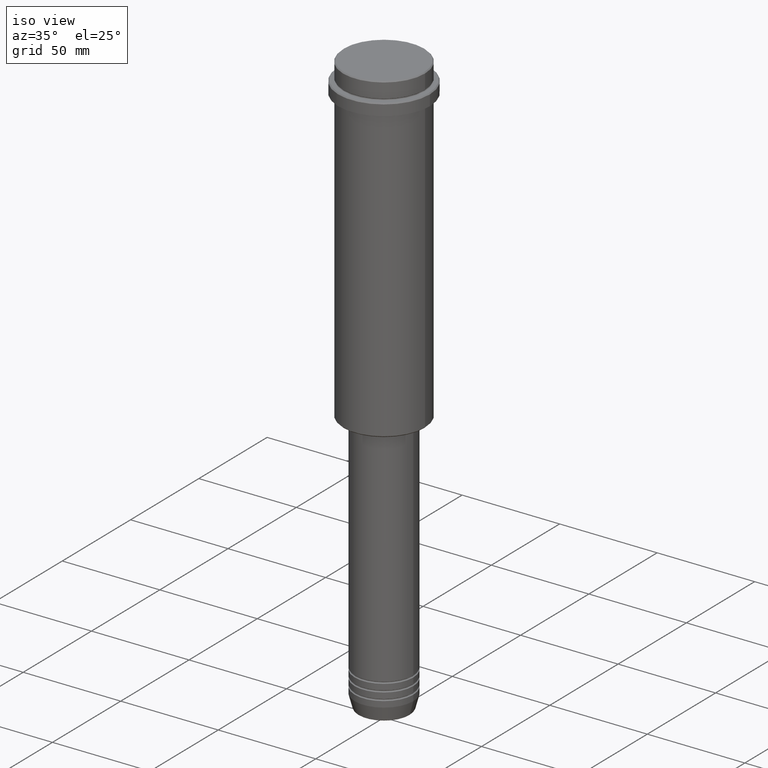
[diagram: clean part render]
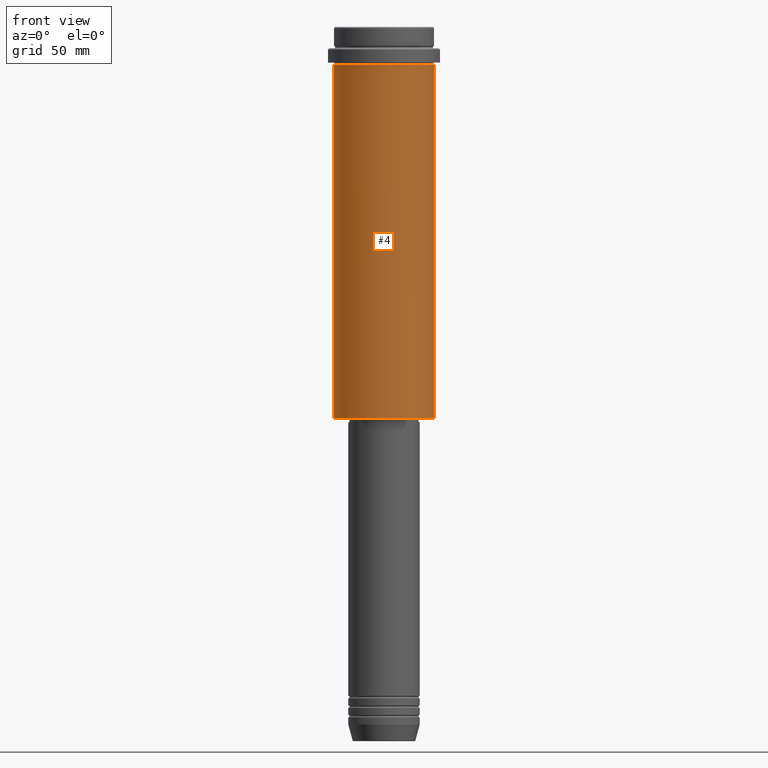
[diagram: tour spotlight — one face highlighted and labeled with its STEP entity id]
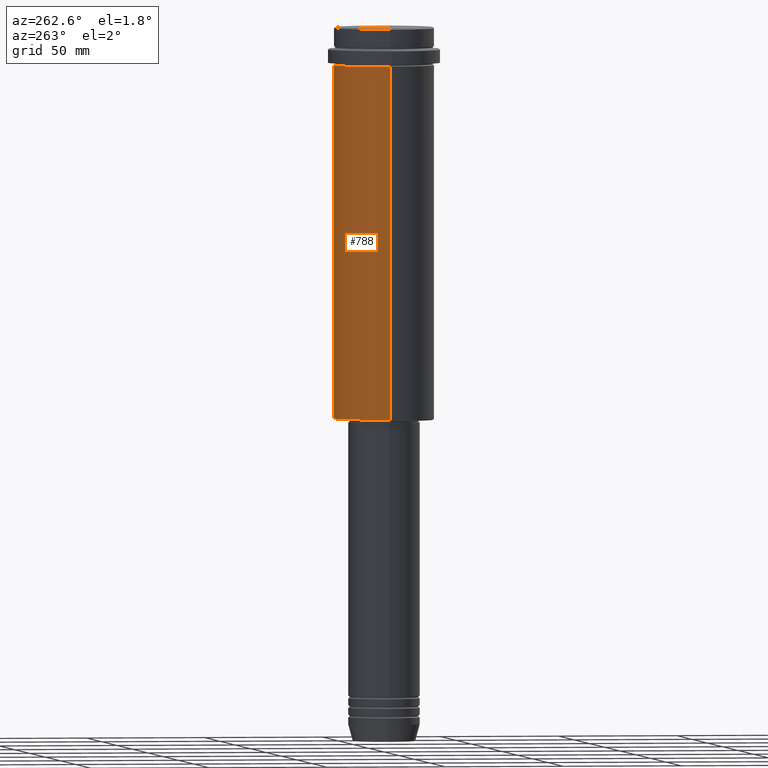
[diagram: tour spotlight — one face highlighted and labeled with its STEP entity id]
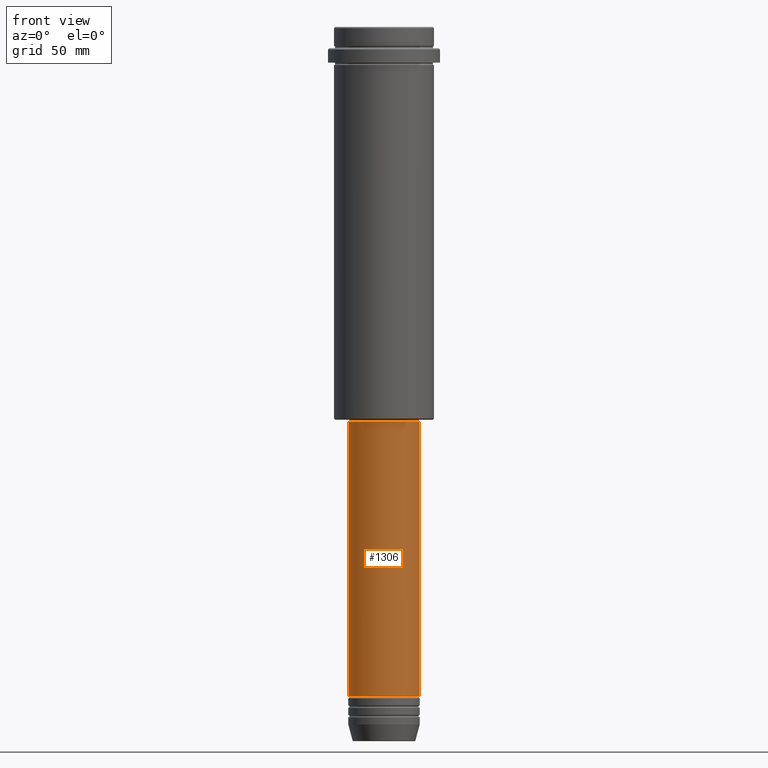
[diagram: tour spotlight — one face highlighted and labeled with its STEP entity id]
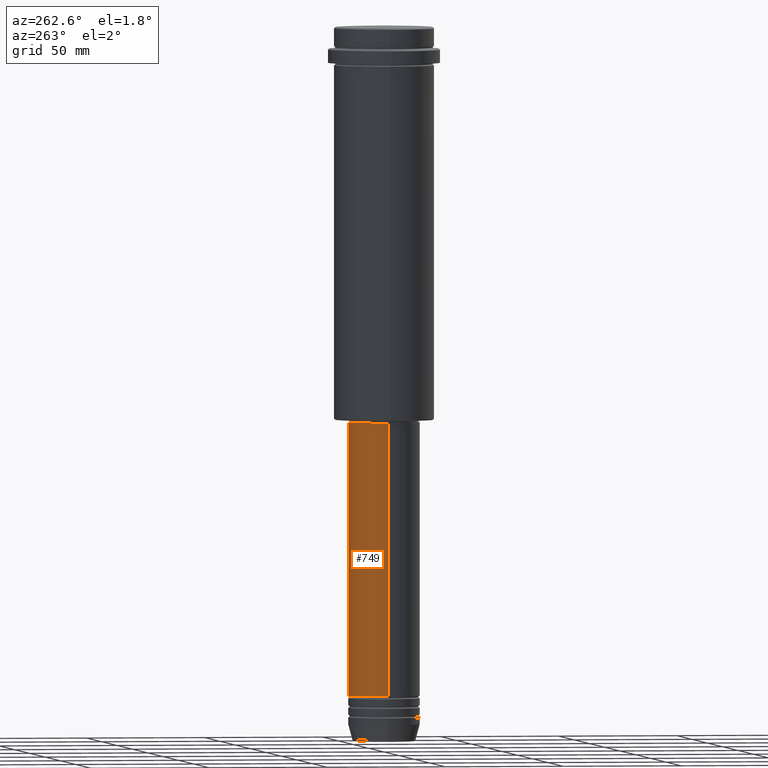
[diagram: tour spotlight — one face highlighted and labeled with its STEP entity id]
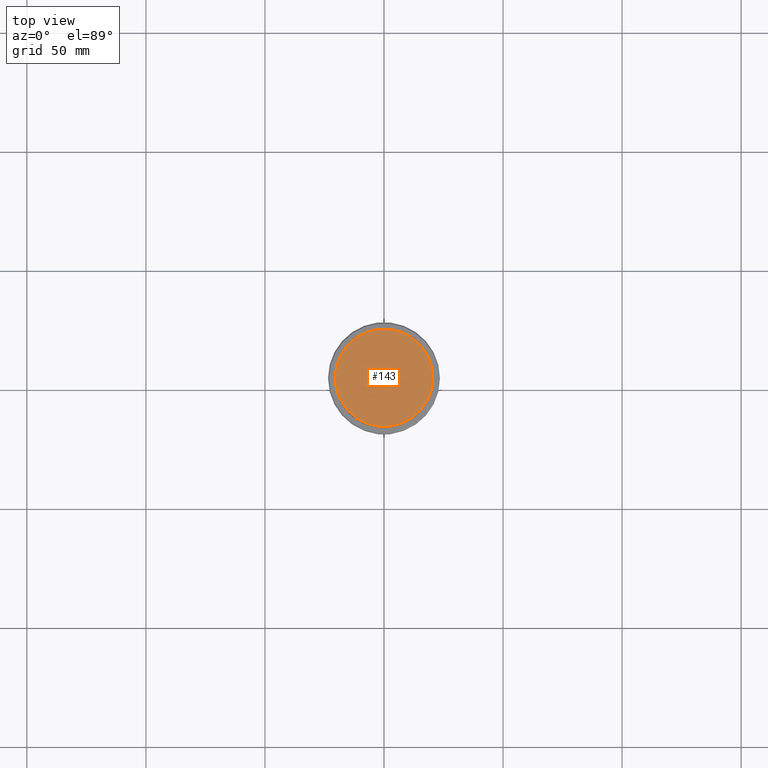
[diagram: tour spotlight — one face highlighted and labeled with its STEP entity id]
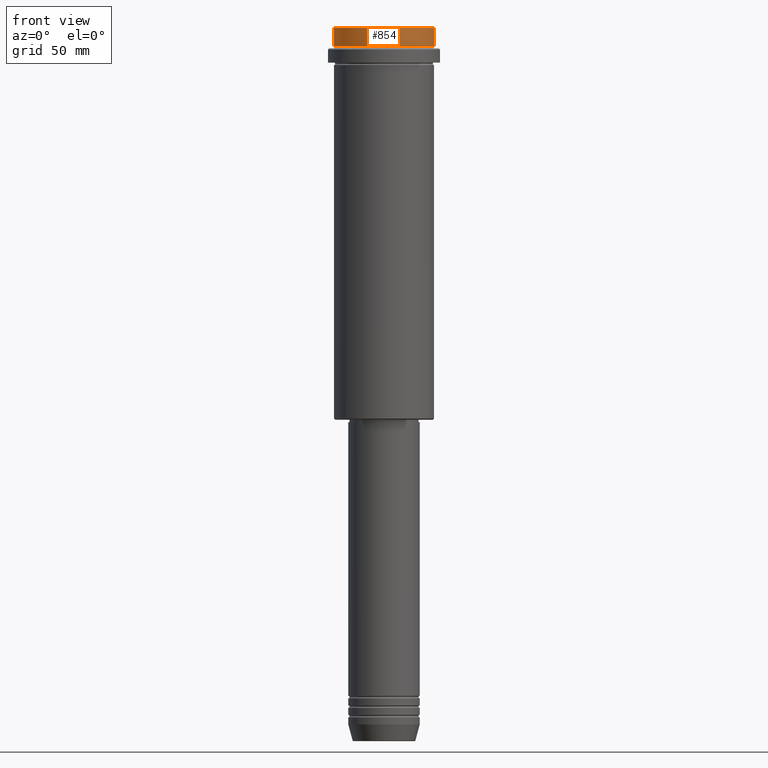
[diagram: tour spotlight — one face highlighted and labeled with its STEP entity id]
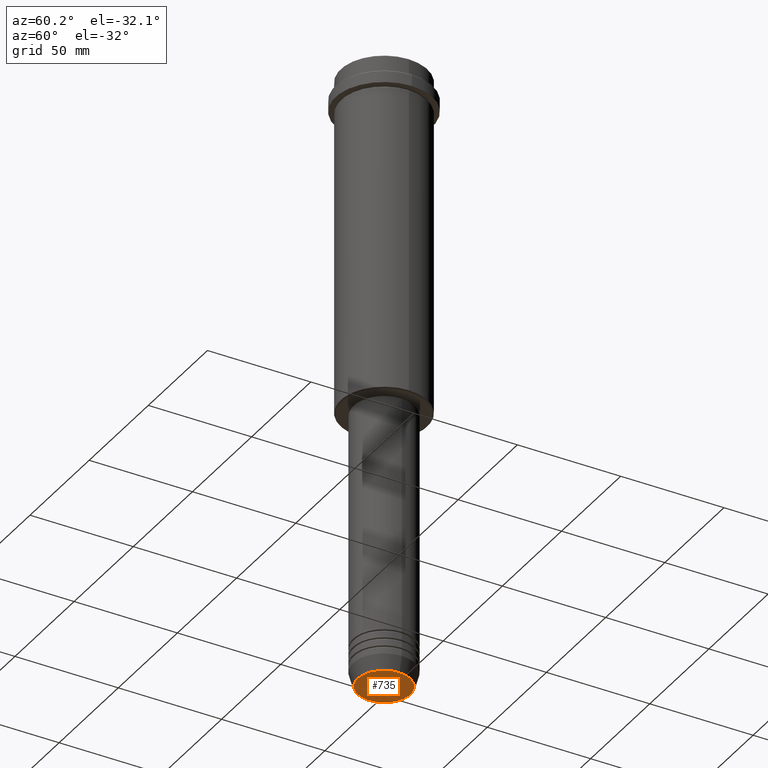
[diagram: tour spotlight — one face highlighted and labeled with its STEP entity id]
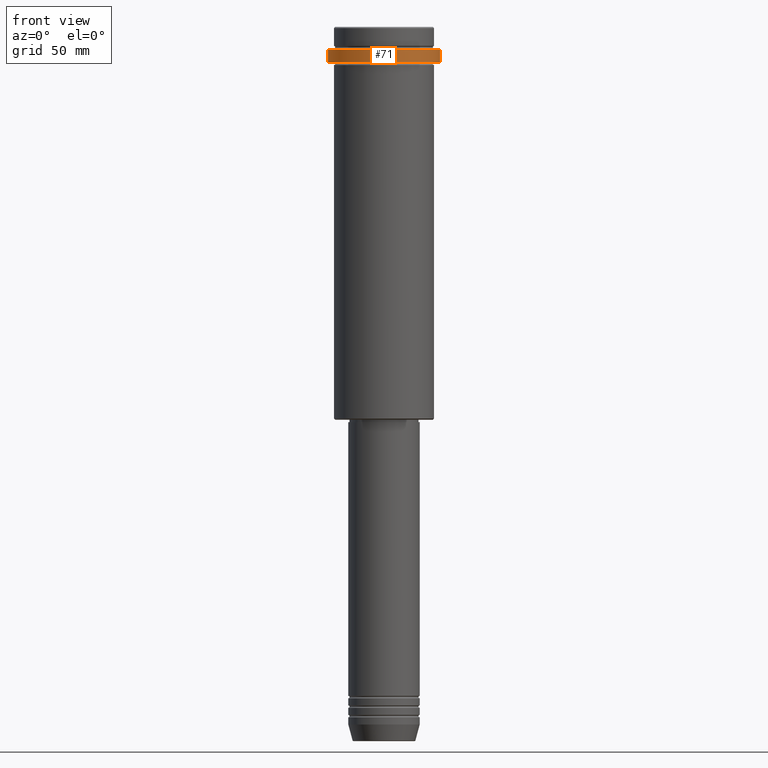
[diagram: tour spotlight — one face highlighted and labeled with its STEP entity id]
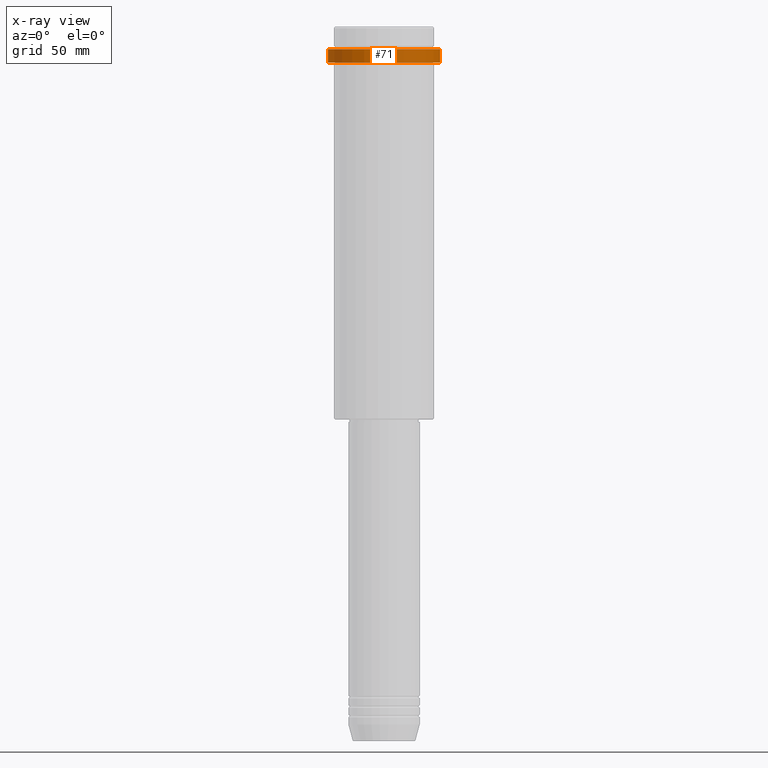
[diagram: x-ray of the same camera — body ghosted, this tour face saturated]
A machine part: a face-by-face anatomy tour. The part has 52 B-rep faces; the first image is the clean iso view, then the 8 largest visible faces are spotlighted one at a time (largest first), each with its STEP entity span.

Face 1 — front view, entity #4. In plain terms, the highlighted cylindrical surface (partial cylindrical patch) has radius 21 mm, axis along (-0, -0, 1).
Definition (entity closure, byte-faithful):
#4 = ADVANCED_FACE ( 'NONE', ( #714 ), #927, .T. ) ;
#44 = ORIENTED_EDGE ( 'NONE', *, *, #298, .T. ) ;
#118 = CARTESIAN_POINT ( 'NONE',  ( -20.99999999999999645, 2.571758278209441267E-15, 0.000000000000000000 ) ) ;
#218 = VECTOR ( 'NONE', #766, 1000.000000000000000 ) ;
#226 = EDGE_CURVE ( 'NONE', #414, #1283, #796, .T. ) ;
#249 = CARTESIAN_POINT ( 'NONE',  ( 0.000000000000000000, 0.000000000000000000, 0.000000000000000000 ) ) ;
#298 = EDGE_CURVE ( 'NONE', #721, #1283, #465, .T. ) ;
#414 = VERTEX_POINT ( 'NONE', #669 ) ;
#429 = CARTESIAN_POINT ( 'NONE',  ( 20.99999999999999645, 0.000000000000000000, -164.4999999999999716 ) ) ;
#437 = VERTEX_POINT ( 'NONE', #1098 ) ;
#450 = ORIENTED_EDGE ( 'NONE', *, *, #1162, .T. ) ;
#456 = ORIENTED_EDGE ( 'NONE', *, *, #701, .F. ) ;
#465 = LINE ( 'NONE', #1115, #539 ) ;
#503 = CARTESIAN_POINT ( 'NONE',  ( 0.000000000000000000, 0.000000000000000000, -164.4999999999999716 ) ) ;
#539 = VECTOR ( 'NONE', #573, 1000.000000000000000 ) ;
#573 = DIRECTION ( 'NONE',  ( -0.000000000000000000, -0.000000000000000000, 1.000000000000000000 ) ) ;
#574 = CARTESIAN_POINT ( 'NONE',  ( 0.000000000000000000, 0.000000000000000000, -16.00000000000000355 ) ) ;
#582 = DIRECTION ( 'NONE',  ( 1.000000000000000000, 0.000000000000000000, 0.000000000000000000 ) ) ;
#623 = DIRECTION ( 'NONE',  ( 1.000000000000000000, 0.000000000000000000, 0.000000000000000000 ) ) ;
#628 = DIRECTION ( 'NONE',  ( -0.000000000000000000, -0.000000000000000000, 1.000000000000000000 ) ) ;
#669 = CARTESIAN_POINT ( 'NONE',  ( -20.99999999999999645, 2.571758278209441267E-15, -16.00000000000000355 ) ) ;
#701 = EDGE_CURVE ( 'NONE', #437, #414, #853, .T. ) ;
#714 = FACE_OUTER_BOUND ( 'NONE', #1226, .T. ) ;
#721 = VERTEX_POINT ( 'NONE', #429 ) ;
#766 = DIRECTION ( 'NONE',  ( -0.000000000000000000, -0.000000000000000000, 1.000000000000000000 ) ) ;
#794 = AXIS2_PLACEMENT_3D ( 'NONE', #249, #1367, #582 ) ;
#796 = CIRCLE ( 'NONE', #861, 20.99999999999999645 ) ;
#846 = AXIS2_PLACEMENT_3D ( 'NONE', #503, #628, #874 ) ;
#853 = LINE ( 'NONE', #118, #218 ) ;
#861 = AXIS2_PLACEMENT_3D ( 'NONE', #574, #1244, #623 ) ;
#874 = DIRECTION ( 'NONE',  ( -1.000000000000000000, 0.000000000000000000, 0.000000000000000000 ) ) ;
#889 = CARTESIAN_POINT ( 'NONE',  ( 20.99999999999999645, 0.000000000000000000, -16.00000000000000355 ) ) ;
#927 = CYLINDRICAL_SURFACE ( 'NONE', #794, 20.99999999999999645 ) ;
#978 = ORIENTED_EDGE ( 'NONE', *, *, #226, .F. ) ;
#1098 = CARTESIAN_POINT ( 'NONE',  ( -20.99999999999999645, 2.571758278209441267E-15, -164.4999999999999716 ) ) ;
#1115 = CARTESIAN_POINT ( 'NONE',  ( 20.99999999999999645, 0.000000000000000000, 0.000000000000000000 ) ) ;
#1162 = EDGE_CURVE ( 'NONE', #437, #721, #1328, .T. ) ;
#1226 = EDGE_LOOP ( 'NONE', ( #456, #450, #44, #978 ) ) ;
#1244 = DIRECTION ( 'NONE',  ( -0.000000000000000000, -0.000000000000000000, 1.000000000000000000 ) ) ;
#1283 = VERTEX_POINT ( 'NONE', #889 ) ;
#1328 = CIRCLE ( 'NONE', #846, 20.99999999999999645 ) ;
#1367 = DIRECTION ( 'NONE',  ( -0.000000000000000000, -0.000000000000000000, 1.000000000000000000 ) ) ;

Face 2 — auxiliary view, entity #788. In plain terms, the highlighted cylindrical surface (partial cylindrical patch) has radius 21 mm, axis along (-0, -0, 1).
Definition (entity closure, byte-faithful):
#118 = CARTESIAN_POINT ( 'NONE',  ( -20.99999999999999645, 2.571758278209441267E-15, 0.000000000000000000 ) ) ;
#151 = CYLINDRICAL_SURFACE ( 'NONE', #197, 20.99999999999999645 ) ;
#197 = AXIS2_PLACEMENT_3D ( 'NONE', #1336, #914, #578 ) ;
#218 = VECTOR ( 'NONE', #766, 1000.000000000000000 ) ;
#231 = CARTESIAN_POINT ( 'NONE',  ( 0.000000000000000000, 0.000000000000000000, -164.4999999999999716 ) ) ;
#271 = ORIENTED_EDGE ( 'NONE', *, *, #701, .T. ) ;
#298 = EDGE_CURVE ( 'NONE', #721, #1283, #465, .T. ) ;
#308 = AXIS2_PLACEMENT_3D ( 'NONE', #513, #1391, #318 ) ;
#318 = DIRECTION ( 'NONE',  ( 1.000000000000000000, 0.000000000000000000, 0.000000000000000000 ) ) ;
#414 = VERTEX_POINT ( 'NONE', #669 ) ;
#429 = CARTESIAN_POINT ( 'NONE',  ( 20.99999999999999645, 0.000000000000000000, -164.4999999999999716 ) ) ;
#437 = VERTEX_POINT ( 'NONE', #1098 ) ;
#442 = CIRCLE ( 'NONE', #1230, 20.99999999999999645 ) ;
#453 = EDGE_CURVE ( 'NONE', #721, #437, #442, .T. ) ;
#465 = LINE ( 'NONE', #1115, #539 ) ;
#469 = CIRCLE ( 'NONE', #308, 20.99999999999999645 ) ;
#513 = CARTESIAN_POINT ( 'NONE',  ( 0.000000000000000000, 0.000000000000000000, -16.00000000000000355 ) ) ;
#539 = VECTOR ( 'NONE', #573, 1000.000000000000000 ) ;
#573 = DIRECTION ( 'NONE',  ( -0.000000000000000000, -0.000000000000000000, 1.000000000000000000 ) ) ;
#578 = DIRECTION ( 'NONE',  ( 1.000000000000000000, 0.000000000000000000, 0.000000000000000000 ) ) ;
#669 = CARTESIAN_POINT ( 'NONE',  ( -20.99999999999999645, 2.571758278209441267E-15, -16.00000000000000355 ) ) ;
#674 = DIRECTION ( 'NONE',  ( -0.000000000000000000, -0.000000000000000000, 1.000000000000000000 ) ) ;
#701 = EDGE_CURVE ( 'NONE', #437, #414, #853, .T. ) ;
#721 = VERTEX_POINT ( 'NONE', #429 ) ;
#766 = DIRECTION ( 'NONE',  ( -0.000000000000000000, -0.000000000000000000, 1.000000000000000000 ) ) ;
#767 = ORIENTED_EDGE ( 'NONE', *, *, #298, .F. ) ;
#788 = ADVANCED_FACE ( 'NONE', ( #1233 ), #151, .T. ) ;
#853 = LINE ( 'NONE', #118, #218 ) ;
#889 = CARTESIAN_POINT ( 'NONE',  ( 20.99999999999999645, 0.000000000000000000, -16.00000000000000355 ) ) ;
#914 = DIRECTION ( 'NONE',  ( -0.000000000000000000, -0.000000000000000000, 1.000000000000000000 ) ) ;
#957 = ORIENTED_EDGE ( 'NONE', *, *, #453, .T. ) ;
#972 = EDGE_LOOP ( 'NONE', ( #957, #271, #1012, #767 ) ) ;
#1012 = ORIENTED_EDGE ( 'NONE', *, *, #1120, .F. ) ;
#1098 = CARTESIAN_POINT ( 'NONE',  ( -20.99999999999999645, 2.571758278209441267E-15, -164.4999999999999716 ) ) ;
#1102 = DIRECTION ( 'NONE',  ( -1.000000000000000000, 0.000000000000000000, 0.000000000000000000 ) ) ;
#1115 = CARTESIAN_POINT ( 'NONE',  ( 20.99999999999999645, 0.000000000000000000, 0.000000000000000000 ) ) ;
#1120 = EDGE_CURVE ( 'NONE', #1283, #414, #469, .T. ) ;
#1230 = AXIS2_PLACEMENT_3D ( 'NONE', #231, #674, #1102 ) ;
#1233 = FACE_OUTER_BOUND ( 'NONE', #972, .T. ) ;
#1283 = VERTEX_POINT ( 'NONE', #889 ) ;
#1336 = CARTESIAN_POINT ( 'NONE',  ( 0.000000000000000000, 0.000000000000000000, 0.000000000000000000 ) ) ;
#1391 = DIRECTION ( 'NONE',  ( -0.000000000000000000, -0.000000000000000000, 1.000000000000000000 ) ) ;

Face 3 — front view, entity #1306. In plain terms, the highlighted cylindrical surface (edge-blend (fillet) strip) has radius 15 mm, axis along (-0, -0, 1).
Definition (entity closure, byte-faithful):
#11 = ORIENTED_EDGE ( 'NONE', *, *, #909, .T. ) ;
#19 = CARTESIAN_POINT ( 'NONE',  ( 0.000000000000000000, 0.000000000000000000, -165.9999999999999147 ) ) ;
#39 = CYLINDRICAL_SURFACE ( 'NONE', #1046, 15.00000000000000000 ) ;
#84 = EDGE_CURVE ( 'NONE', #1260, #887, #300, .T. ) ;
#88 = CARTESIAN_POINT ( 'NONE',  ( 0.000000000000000000, 0.000000000000000000, -280.9999999999999432 ) ) ;
#122 = EDGE_LOOP ( 'NONE', ( #167, #1313, #11, #763 ) ) ;
#124 = LINE ( 'NONE', #433, #134 ) ;
#134 = VECTOR ( 'NONE', #325, 1000.000000000000000 ) ;
#154 = CIRCLE ( 'NONE', #1172, 15.00000000000000000 ) ;
#167 = ORIENTED_EDGE ( 'NONE', *, *, #84, .F. ) ;
#300 = LINE ( 'NONE', #1284, #839 ) ;
#325 = DIRECTION ( 'NONE',  ( -0.000000000000000000, -0.000000000000000000, 1.000000000000000000 ) ) ;
#331 = FACE_OUTER_BOUND ( 'NONE', #122, .T. ) ;
#352 = CARTESIAN_POINT ( 'NONE',  ( 15.00000000000000000, 0.000000000000000000, -165.9999999999999147 ) ) ;
#433 = CARTESIAN_POINT ( 'NONE',  ( 15.00000000000000000, 0.000000000000000000, 0.000000000000000000 ) ) ;
#439 = EDGE_CURVE ( 'NONE', #887, #1249, #154, .T. ) ;
#444 = DIRECTION ( 'NONE',  ( -0.000000000000000000, -0.000000000000000000, 1.000000000000000000 ) ) ;
#461 = CARTESIAN_POINT ( 'NONE',  ( 0.000000000000000000, 0.000000000000000000, 0.000000000000000000 ) ) ;
#534 = DIRECTION ( 'NONE',  ( -0.000000000000000000, -0.000000000000000000, 1.000000000000000000 ) ) ;
#666 = DIRECTION ( 'NONE',  ( 1.000000000000000000, 0.000000000000000000, 0.000000000000000000 ) ) ;
#687 = CARTESIAN_POINT ( 'NONE',  ( -15.00000000000000000, 1.836970198721029589E-15, -280.9999999999999432 ) ) ;
#743 = EDGE_CURVE ( 'NONE', #1260, #1407, #1041, .T. ) ;
#763 = ORIENTED_EDGE ( 'NONE', *, *, #439, .F. ) ;
#839 = VECTOR ( 'NONE', #534, 1000.000000000000000 ) ;
#887 = VERTEX_POINT ( 'NONE', #1321 ) ;
#895 = DIRECTION ( 'NONE',  ( 1.000000000000000000, 0.000000000000000000, 0.000000000000000000 ) ) ;
#909 = EDGE_CURVE ( 'NONE', #1407, #1249, #124, .T. ) ;
#1041 = CIRCLE ( 'NONE', #1063, 15.00000000000000000 ) ;
#1046 = AXIS2_PLACEMENT_3D ( 'NONE', #461, #1204, #666 ) ;
#1048 = CARTESIAN_POINT ( 'NONE',  ( 15.00000000000000000, 0.000000000000000000, -280.9999999999999432 ) ) ;
#1063 = AXIS2_PLACEMENT_3D ( 'NONE', #88, #1400, #1079 ) ;
#1079 = DIRECTION ( 'NONE',  ( 1.000000000000000000, 0.000000000000000000, 0.000000000000000000 ) ) ;
#1172 = AXIS2_PLACEMENT_3D ( 'NONE', #19, #444, #895 ) ;
#1204 = DIRECTION ( 'NONE',  ( -0.000000000000000000, -0.000000000000000000, 1.000000000000000000 ) ) ;
#1249 = VERTEX_POINT ( 'NONE', #352 ) ;
#1260 = VERTEX_POINT ( 'NONE', #687 ) ;
#1284 = CARTESIAN_POINT ( 'NONE',  ( -15.00000000000000000, 1.836970198721029589E-15, 0.000000000000000000 ) ) ;
#1306 = ADVANCED_FACE ( 'NONE', ( #331 ), #39, .T. ) ;
#1313 = ORIENTED_EDGE ( 'NONE', *, *, #743, .T. ) ;
#1321 = CARTESIAN_POINT ( 'NONE',  ( -15.00000000000000000, 1.836970198721029589E-15, -165.9999999999999147 ) ) ;
#1400 = DIRECTION ( 'NONE',  ( -0.000000000000000000, -0.000000000000000000, 1.000000000000000000 ) ) ;
#1407 = VERTEX_POINT ( 'NONE', #1048 ) ;

Face 4 — auxiliary view, entity #749. In plain terms, the highlighted cylindrical surface (edge-blend (fillet) strip) has radius 15 mm, axis along (-0, -0, 1).
Definition (entity closure, byte-faithful):
#28 = CARTESIAN_POINT ( 'NONE',  ( 0.000000000000000000, 0.000000000000000000, -280.9999999999999432 ) ) ;
#62 = DIRECTION ( 'NONE',  ( 1.000000000000000000, 0.000000000000000000, 0.000000000000000000 ) ) ;
#77 = DIRECTION ( 'NONE',  ( -0.000000000000000000, -0.000000000000000000, 1.000000000000000000 ) ) ;
#84 = EDGE_CURVE ( 'NONE', #1260, #887, #300, .T. ) ;
#103 = DIRECTION ( 'NONE',  ( 1.000000000000000000, 0.000000000000000000, 0.000000000000000000 ) ) ;
#124 = LINE ( 'NONE', #433, #134 ) ;
#134 = VECTOR ( 'NONE', #325, 1000.000000000000000 ) ;
#163 = ORIENTED_EDGE ( 'NONE', *, *, #84, .T. ) ;
#177 = AXIS2_PLACEMENT_3D ( 'NONE', #410, #306, #103 ) ;
#269 = ORIENTED_EDGE ( 'NONE', *, *, #944, .T. ) ;
#300 = LINE ( 'NONE', #1284, #839 ) ;
#306 = DIRECTION ( 'NONE',  ( -0.000000000000000000, -0.000000000000000000, 1.000000000000000000 ) ) ;
#325 = DIRECTION ( 'NONE',  ( -0.000000000000000000, -0.000000000000000000, 1.000000000000000000 ) ) ;
#352 = CARTESIAN_POINT ( 'NONE',  ( 15.00000000000000000, 0.000000000000000000, -165.9999999999999147 ) ) ;
#375 = CIRCLE ( 'NONE', #1373, 15.00000000000000000 ) ;
#405 = FACE_OUTER_BOUND ( 'NONE', #1349, .T. ) ;
#410 = CARTESIAN_POINT ( 'NONE',  ( 0.000000000000000000, 0.000000000000000000, 0.000000000000000000 ) ) ;
#433 = CARTESIAN_POINT ( 'NONE',  ( 15.00000000000000000, 0.000000000000000000, 0.000000000000000000 ) ) ;
#515 = CIRCLE ( 'NONE', #1281, 15.00000000000000000 ) ;
#522 = CYLINDRICAL_SURFACE ( 'NONE', #177, 15.00000000000000000 ) ;
#534 = DIRECTION ( 'NONE',  ( -0.000000000000000000, -0.000000000000000000, 1.000000000000000000 ) ) ;
#687 = CARTESIAN_POINT ( 'NONE',  ( -15.00000000000000000, 1.836970198721029589E-15, -280.9999999999999432 ) ) ;
#749 = ADVANCED_FACE ( 'NONE', ( #405 ), #522, .T. ) ;
#839 = VECTOR ( 'NONE', #534, 1000.000000000000000 ) ;
#887 = VERTEX_POINT ( 'NONE', #1321 ) ;
#909 = EDGE_CURVE ( 'NONE', #1407, #1249, #124, .T. ) ;
#944 = EDGE_CURVE ( 'NONE', #1407, #1260, #375, .T. ) ;
#963 = DIRECTION ( 'NONE',  ( -0.000000000000000000, -0.000000000000000000, 1.000000000000000000 ) ) ;
#1015 = ORIENTED_EDGE ( 'NONE', *, *, #1143, .F. ) ;
#1048 = CARTESIAN_POINT ( 'NONE',  ( 15.00000000000000000, 0.000000000000000000, -280.9999999999999432 ) ) ;
#1107 = ORIENTED_EDGE ( 'NONE', *, *, #909, .F. ) ;
#1143 = EDGE_CURVE ( 'NONE', #1249, #887, #515, .T. ) ;
#1249 = VERTEX_POINT ( 'NONE', #352 ) ;
#1260 = VERTEX_POINT ( 'NONE', #687 ) ;
#1281 = AXIS2_PLACEMENT_3D ( 'NONE', #1297, #963, #1398 ) ;
#1284 = CARTESIAN_POINT ( 'NONE',  ( -15.00000000000000000, 1.836970198721029589E-15, 0.000000000000000000 ) ) ;
#1297 = CARTESIAN_POINT ( 'NONE',  ( 0.000000000000000000, 0.000000000000000000, -165.9999999999999147 ) ) ;
#1321 = CARTESIAN_POINT ( 'NONE',  ( -15.00000000000000000, 1.836970198721029589E-15, -165.9999999999999147 ) ) ;
#1349 = EDGE_LOOP ( 'NONE', ( #269, #163, #1015, #1107 ) ) ;
#1373 = AXIS2_PLACEMENT_3D ( 'NONE', #28, #77, #62 ) ;
#1398 = DIRECTION ( 'NONE',  ( 1.000000000000000000, 0.000000000000000000, 0.000000000000000000 ) ) ;
#1407 = VERTEX_POINT ( 'NONE', #1048 ) ;

Face 5 — top view, entity #143. In plain terms, the highlighted planar face has unit normal (0, -0, 1).
Definition (entity closure, byte-faithful):
#2 = PLANE ( 'NONE',  #677 ) ;
#143 = ADVANCED_FACE ( 'NONE', ( #1207 ), #2, .T. ) ;
#156 = AXIS2_PLACEMENT_3D ( 'NONE', #1378, #1017, #1370 ) ;
#164 = DIRECTION ( 'NONE',  ( -0.000000000000000000, -0.000000000000000000, 1.000000000000000000 ) ) ;
#175 = DIRECTION ( 'NONE',  ( 1.000000000000000000, 0.000000000000000000, 0.000000000000000000 ) ) ;
#194 = ORIENTED_EDGE ( 'NONE', *, *, #1004, .T. ) ;
#341 = EDGE_LOOP ( 'NONE', ( #988, #194 ) ) ;
#398 = CARTESIAN_POINT ( 'NONE',  ( -20.49999999999998934, 0.000000000000000000, 0.000000000000000000 ) ) ;
#492 = CIRCLE ( 'NONE', #956, 20.49999999999998934 ) ;
#544 = DIRECTION ( 'NONE',  ( 0.000000000000000000, -0.000000000000000000, 1.000000000000000000 ) ) ;
#585 = VERTEX_POINT ( 'NONE', #1374 ) ;
#594 = CARTESIAN_POINT ( 'NONE',  ( 0.000000000000000000, 0.000000000000000000, 0.000000000000000000 ) ) ;
#670 = VERTEX_POINT ( 'NONE', #398 ) ;
#677 = AXIS2_PLACEMENT_3D ( 'NONE', #1181, #544, #1331 ) ;
#956 = AXIS2_PLACEMENT_3D ( 'NONE', #594, #164, #175 ) ;
#988 = ORIENTED_EDGE ( 'NONE', *, *, #1380, .T. ) ;
#1004 = EDGE_CURVE ( 'NONE', #585, #670, #1394, .T. ) ;
#1017 = DIRECTION ( 'NONE',  ( -0.000000000000000000, -0.000000000000000000, 1.000000000000000000 ) ) ;
#1181 = CARTESIAN_POINT ( 'NONE',  ( 0.000000000000000000, 0.000000000000000000, 0.000000000000000000 ) ) ;
#1207 = FACE_OUTER_BOUND ( 'NONE', #341, .T. ) ;
#1331 = DIRECTION ( 'NONE',  ( 1.000000000000000000, 0.000000000000000000, 0.000000000000000000 ) ) ;
#1370 = DIRECTION ( 'NONE',  ( 1.000000000000000000, 0.000000000000000000, 0.000000000000000000 ) ) ;
#1374 = CARTESIAN_POINT ( 'NONE',  ( 20.49999999999998934, 2.541142108230757085E-15, 0.000000000000000000 ) ) ;
#1378 = CARTESIAN_POINT ( 'NONE',  ( 0.000000000000000000, 0.000000000000000000, 0.000000000000000000 ) ) ;
#1380 = EDGE_CURVE ( 'NONE', #670, #585, #492, .T. ) ;
#1394 = CIRCLE ( 'NONE', #156, 20.49999999999998934 ) ;

Face 6 — front view, entity #854. In plain terms, the highlighted cylindrical surface (partial cylindrical patch) has radius 21 mm, axis along (-0, -0, 1).
Definition (entity closure, byte-faithful):
#117 = DIRECTION ( 'NONE',  ( -0.000000000000000000, -0.000000000000000000, 1.000000000000000000 ) ) ;
#120 = EDGE_LOOP ( 'NONE', ( #885, #827, #312, #1211 ) ) ;
#132 = CIRCLE ( 'NONE', #153, 20.99999999999999645 ) ;
#146 = CARTESIAN_POINT ( 'NONE',  ( 0.000000000000000000, 0.000000000000000000, -0.5000000000000073275 ) ) ;
#153 = AXIS2_PLACEMENT_3D ( 'NONE', #473, #1342, #1301 ) ;
#252 = EDGE_CURVE ( 'NONE', #1267, #1047, #132, .T. ) ;
#312 = ORIENTED_EDGE ( 'NONE', *, *, #1258, .T. ) ;
#458 = CYLINDRICAL_SURFACE ( 'NONE', #867, 20.99999999999999645 ) ;
#462 = DIRECTION ( 'NONE',  ( 1.000000000000000000, 0.000000000000000000, 0.000000000000000000 ) ) ;
#473 = CARTESIAN_POINT ( 'NONE',  ( 0.000000000000000000, 0.000000000000000000, -7.999999999999998224 ) ) ;
#605 = CARTESIAN_POINT ( 'NONE',  ( -20.99999999999999645, 2.571758278209441267E-15, 0.000000000000000000 ) ) ;
#656 = VERTEX_POINT ( 'NONE', #1316 ) ;
#663 = VECTOR ( 'NONE', #117, 1000.000000000000000 ) ;
#672 = DIRECTION ( 'NONE',  ( 0.000000000000000000, 0.000000000000000000, -1.000000000000000000 ) ) ;
#773 = VECTOR ( 'NONE', #824, 1000.000000000000000 ) ;
#777 = DIRECTION ( 'NONE',  ( -0.000000000000000000, -0.000000000000000000, 1.000000000000000000 ) ) ;
#790 = EDGE_CURVE ( 'NONE', #1379, #656, #995, .T. ) ;
#795 = CARTESIAN_POINT ( 'NONE',  ( 20.99999999999999645, 0.000000000000000000, 0.000000000000000000 ) ) ;
#824 = DIRECTION ( 'NONE',  ( -0.000000000000000000, -0.000000000000000000, 1.000000000000000000 ) ) ;
#827 = ORIENTED_EDGE ( 'NONE', *, *, #252, .T. ) ;
#854 = ADVANCED_FACE ( 'NONE', ( #1101 ), #458, .T. ) ;
#867 = AXIS2_PLACEMENT_3D ( 'NONE', #1206, #777, #462 ) ;
#885 = ORIENTED_EDGE ( 'NONE', *, *, #1372, .F. ) ;
#979 = CARTESIAN_POINT ( 'NONE',  ( -20.99999999999999645, 2.571758278209441267E-15, -7.999999999999998224 ) ) ;
#995 = CIRCLE ( 'NONE', #1256, 20.99999999999999645 ) ;
#1008 = LINE ( 'NONE', #795, #663 ) ;
#1047 = VERTEX_POINT ( 'NONE', #1265 ) ;
#1097 = DIRECTION ( 'NONE',  ( 1.000000000000000000, 0.000000000000000000, 0.000000000000000000 ) ) ;
#1101 = FACE_OUTER_BOUND ( 'NONE', #120, .T. ) ;
#1128 = LINE ( 'NONE', #605, #773 ) ;
#1206 = CARTESIAN_POINT ( 'NONE',  ( 0.000000000000000000, 0.000000000000000000, 0.000000000000000000 ) ) ;
#1211 = ORIENTED_EDGE ( 'NONE', *, *, #790, .T. ) ;
#1256 = AXIS2_PLACEMENT_3D ( 'NONE', #146, #672, #1097 ) ;
#1258 = EDGE_CURVE ( 'NONE', #1047, #1379, #1008, .T. ) ;
#1264 = CARTESIAN_POINT ( 'NONE',  ( 20.99999999999999645, 0.000000000000000000, -0.5000000000000073275 ) ) ;
#1265 = CARTESIAN_POINT ( 'NONE',  ( 20.99999999999999645, 0.000000000000000000, -7.999999999999998224 ) ) ;
#1267 = VERTEX_POINT ( 'NONE', #979 ) ;
#1301 = DIRECTION ( 'NONE',  ( 1.000000000000000000, 0.000000000000000000, 0.000000000000000000 ) ) ;
#1316 = CARTESIAN_POINT ( 'NONE',  ( -20.99999999999999645, 2.571758278209441267E-15, -0.5000000000000073275 ) ) ;
#1342 = DIRECTION ( 'NONE',  ( -0.000000000000000000, -0.000000000000000000, 1.000000000000000000 ) ) ;
#1372 = EDGE_CURVE ( 'NONE', #1267, #656, #1128, .T. ) ;
#1379 = VERTEX_POINT ( 'NONE', #1264 ) ;

Face 7 — auxiliary view, entity #735. In plain terms, the highlighted planar face has unit normal (0, -0, 1).
Definition (entity closure, byte-faithful):
#97 = CARTESIAN_POINT ( 'NONE',  ( 0.000000000000000000, 0.000000000000000000, -300.0000000000000568 ) ) ;
#187 = ORIENTED_EDGE ( 'NONE', *, *, #962, .T. ) ;
#190 = PLANE ( 'NONE',  #702 ) ;
#283 = AXIS2_PLACEMENT_3D ( 'NONE', #1161, #1146, #378 ) ;
#297 = DIRECTION ( 'NONE',  ( 0.000000000000000000, -0.000000000000000000, 1.000000000000000000 ) ) ;
#310 = VERTEX_POINT ( 'NONE', #565 ) ;
#328 = CIRCLE ( 'NONE', #283, 12.74069215899265828 ) ;
#378 = DIRECTION ( 'NONE',  ( 1.000000000000000000, 0.000000000000000000, 0.000000000000000000 ) ) ;
#451 = EDGE_LOOP ( 'NONE', ( #187, #475 ) ) ;
#457 = CARTESIAN_POINT ( 'NONE',  ( 12.74069215899265828, 0.000000000000000000, -300.0000000000000568 ) ) ;
#475 = ORIENTED_EDGE ( 'NONE', *, *, #992, .T. ) ;
#565 = CARTESIAN_POINT ( 'NONE',  ( -12.74069215899265828, 1.589857736427680246E-15, -300.0000000000000568 ) ) ;
#606 = DIRECTION ( 'NONE',  ( 0.000000000000000000, 0.000000000000000000, -1.000000000000000000 ) ) ;
#648 = FACE_OUTER_BOUND ( 'NONE', #451, .T. ) ;
#702 = AXIS2_PLACEMENT_3D ( 'NONE', #97, #297, #757 ) ;
#735 = ADVANCED_FACE ( 'NONE', ( #648 ), #190, .F. ) ;
#755 = CIRCLE ( 'NONE', #1413, 12.74069215899265828 ) ;
#757 = DIRECTION ( 'NONE',  ( 1.000000000000000000, 0.000000000000000000, 0.000000000000000000 ) ) ;
#825 = CARTESIAN_POINT ( 'NONE',  ( 0.000000000000000000, 0.000000000000000000, -300.0000000000000568 ) ) ;
#931 = DIRECTION ( 'NONE',  ( 1.000000000000000000, 0.000000000000000000, 0.000000000000000000 ) ) ;
#962 = EDGE_CURVE ( 'NONE', #1213, #310, #755, .T. ) ;
#992 = EDGE_CURVE ( 'NONE', #310, #1213, #328, .T. ) ;
#1146 = DIRECTION ( 'NONE',  ( 0.000000000000000000, 0.000000000000000000, -1.000000000000000000 ) ) ;
#1161 = CARTESIAN_POINT ( 'NONE',  ( 0.000000000000000000, 0.000000000000000000, -300.0000000000000568 ) ) ;
#1213 = VERTEX_POINT ( 'NONE', #457 ) ;
#1413 = AXIS2_PLACEMENT_3D ( 'NONE', #825, #606, #931 ) ;

Face 8 — front view, entity #71. An x-ray twin of the same camera follows (body ghosted, this face saturated) — the face is partly hidden behind the body. In plain terms, the highlighted cylindrical surface (partial cylindrical patch) has radius 23.5 mm, axis along (-0, -0, 1).
Definition (entity closure, byte-faithful):
#41 = AXIS2_PLACEMENT_3D ( 'NONE', #498, #155, #593 ) ;
#71 = ADVANCED_FACE ( 'NONE', ( #779 ), #673, .T. ) ;
#111 = CARTESIAN_POINT ( 'NONE',  ( 23.50000000000000000, 0.000000000000000000, 0.000000000000000000 ) ) ;
#138 = CIRCLE ( 'NONE', #868, 23.50000000000000000 ) ;
#148 = ORIENTED_EDGE ( 'NONE', *, *, #215, .T. ) ;
#155 = DIRECTION ( 'NONE',  ( -0.000000000000000000, -0.000000000000000000, 1.000000000000000000 ) ) ;
#215 = EDGE_CURVE ( 'NONE', #548, #812, #884, .T. ) ;
#229 = CARTESIAN_POINT ( 'NONE',  ( -23.50000000000000711, 2.877919977996281109E-15, -15.00000000000000178 ) ) ;
#232 = EDGE_CURVE ( 'NONE', #911, #698, #399, .T. ) ;
#333 = CARTESIAN_POINT ( 'NONE',  ( 0.000000000000000000, 0.000000000000000000, -15.00000000000000178 ) ) ;
#356 = DIRECTION ( 'NONE',  ( -0.000000000000000000, -0.000000000000000000, 1.000000000000000000 ) ) ;
#382 = EDGE_CURVE ( 'NONE', #911, #548, #464, .T. ) ;
#399 = LINE ( 'NONE', #413, #991 ) ;
#413 = CARTESIAN_POINT ( 'NONE',  ( -23.50000000000000000, 2.877919977996280320E-15, 0.000000000000000000 ) ) ;
#464 = CIRCLE ( 'NONE', #1277, 23.50000000000000355 ) ;
#487 = CARTESIAN_POINT ( 'NONE',  ( 23.50000000000000355, 0.000000000000000000, -15.00000000000000178 ) ) ;
#498 = CARTESIAN_POINT ( 'NONE',  ( 0.000000000000000000, 0.000000000000000000, 0.000000000000000000 ) ) ;
#533 = ORIENTED_EDGE ( 'NONE', *, *, #1139, .T. ) ;
#543 = CARTESIAN_POINT ( 'NONE',  ( -23.50000000000000000, 2.877919977996280320E-15, -9.499999999999973355 ) ) ;
#548 = VERTEX_POINT ( 'NONE', #487 ) ;
#553 = ORIENTED_EDGE ( 'NONE', *, *, #382, .T. ) ;
#593 = DIRECTION ( 'NONE',  ( 1.000000000000000000, 0.000000000000000000, 0.000000000000000000 ) ) ;
#620 = DIRECTION ( 'NONE',  ( 1.000000000000000000, 0.000000000000000000, 0.000000000000000000 ) ) ;
#673 = CYLINDRICAL_SURFACE ( 'NONE', #41, 23.50000000000000000 ) ;
#698 = VERTEX_POINT ( 'NONE', #543 ) ;
#761 = CARTESIAN_POINT ( 'NONE',  ( 0.000000000000000000, 0.000000000000000000, -9.499999999999973355 ) ) ;
#779 = FACE_OUTER_BOUND ( 'NONE', #1326, .T. ) ;
#800 = DIRECTION ( 'NONE',  ( -0.000000000000000000, -0.000000000000000000, 1.000000000000000000 ) ) ;
#812 = VERTEX_POINT ( 'NONE', #986 ) ;
#817 = VECTOR ( 'NONE', #356, 1000.000000000000000 ) ;
#868 = AXIS2_PLACEMENT_3D ( 'NONE', #761, #1187, #620 ) ;
#884 = LINE ( 'NONE', #111, #817 ) ;
#911 = VERTEX_POINT ( 'NONE', #229 ) ;
#960 = DIRECTION ( 'NONE',  ( -0.000000000000000000, -0.000000000000000000, 1.000000000000000000 ) ) ;
#986 = CARTESIAN_POINT ( 'NONE',  ( 23.50000000000000000, 0.000000000000000000, -9.499999999999973355 ) ) ;
#991 = VECTOR ( 'NONE', #960, 1000.000000000000000 ) ;
#998 = DIRECTION ( 'NONE',  ( 1.000000000000000000, 0.000000000000000000, 0.000000000000000000 ) ) ;
#1095 = ORIENTED_EDGE ( 'NONE', *, *, #232, .F. ) ;
#1139 = EDGE_CURVE ( 'NONE', #812, #698, #138, .T. ) ;
#1187 = DIRECTION ( 'NONE',  ( 0.000000000000000000, 0.000000000000000000, -1.000000000000000000 ) ) ;
#1277 = AXIS2_PLACEMENT_3D ( 'NONE', #333, #800, #998 ) ;
#1326 = EDGE_LOOP ( 'NONE', ( #1095, #553, #148, #533 ) ) ;